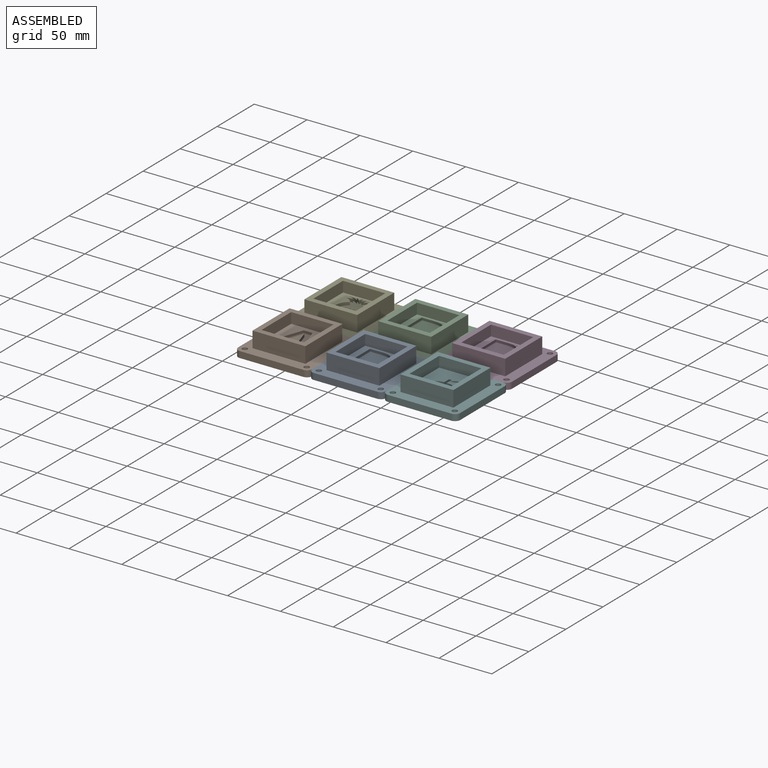
[diagram: assembled view]
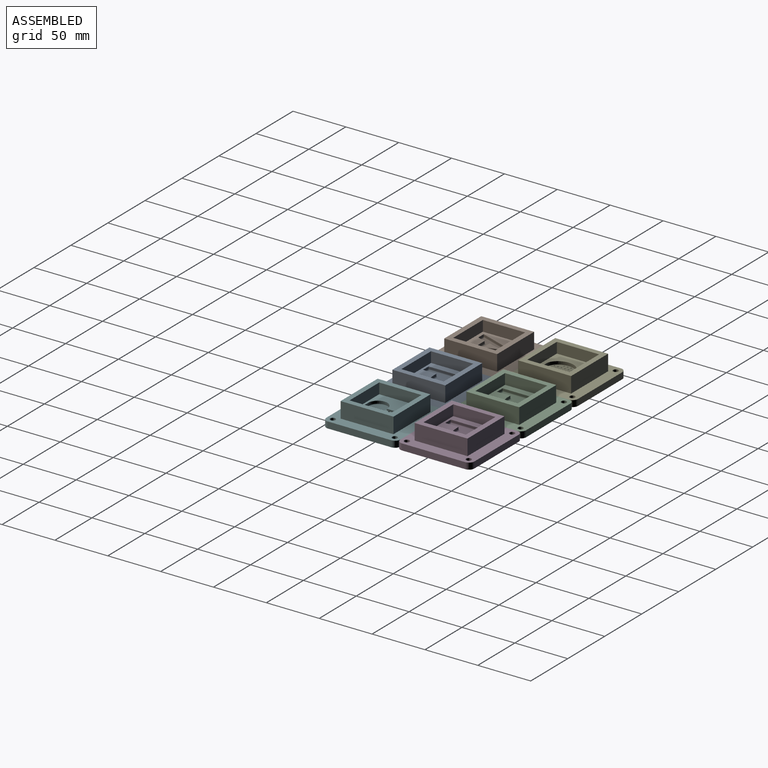
[diagram: assembled view, second angle]
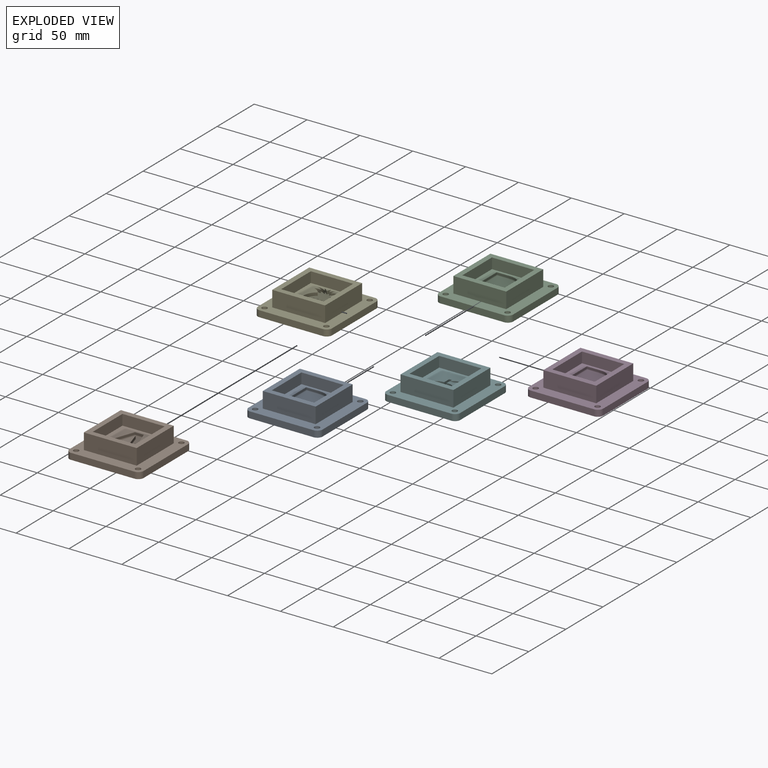
[diagram: exploded view]
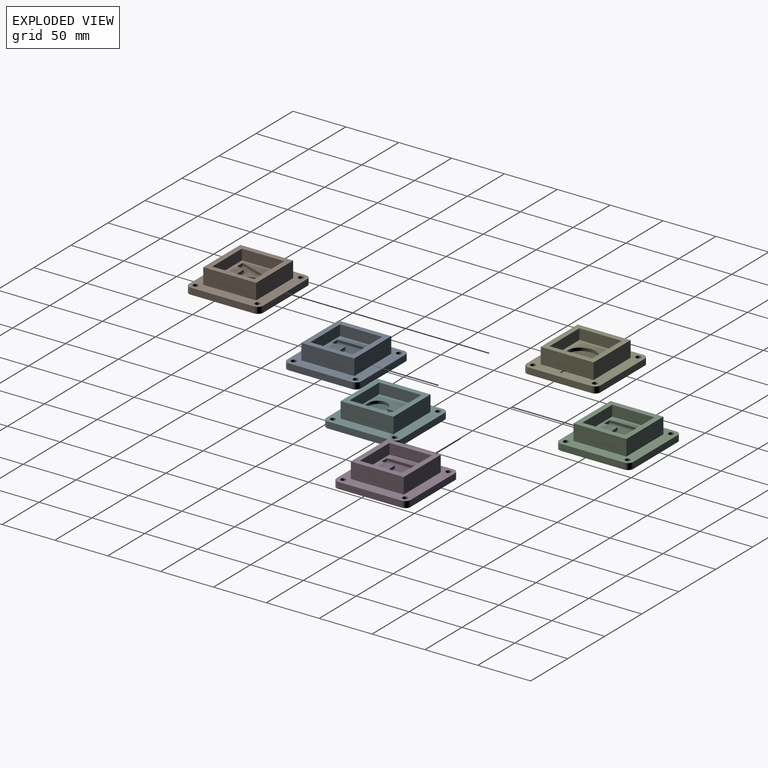
[diagram: exploded view, second angle]
ASSEMBLY  parts=6 mates=5
PART A: 43 faces, bbox 70x70x21 mm
  f0: plane 50x50mm, normal (0,0,1), area 900mm2, adj f7,f8,f9,f10,f19,f20,f21,f22
  f1: plane 60x6mm, normal (1,0,0), area 360mm2, adj f5,f6,f11,f14
  f2: plane 60x6mm, normal (0,1,0), area 360mm2, adj f5,f6,f11,f12
  f3: plane 60x6mm, normal (-1,0,0), area 360mm2, adj f5,f6,f12,f13
  f4: plane 60x6mm, normal (0,-1,0), area 360mm2, adj f5,f6,f13,f14
  f5: plane 70x70mm, normal (0,0,1), area 2300mm2, adj f1,f2,f3,f4,f7,f8,f9,f10
  f6: plane 70x70mm, normal (0,0,-1), area 4800mm2, adj f1,f2,f3,f4,f11,f12,f13,f14
  f7: plane 50x15mm, normal (1,0,0), area 750mm2, adj f0,f5,f8,f10
  f8: plane 50x15mm, normal (0,1,0), area 750mm2, adj f0,f5,f7,f9
  f9: plane 50x15mm, normal (-1,0,0), area 750mm2, adj f0,f5,f8,f10
  f10: plane 50x15mm, normal (0,-1,0), area 750mm2, adj f0,f5,f7,f9
  f11: cylinder r=5mm len=6mm, axis (0,0,-1), area 47.1mm2, adj f1,f2,f5,f6
  f12: cylinder r=5mm len=6mm, axis (0,0,1), area 47.1mm2, adj f2,f3,f5,f6
  f13: cylinder r=5mm len=6mm, axis (0,0,-1), area 47.1mm2, adj f3,f4,f5,f6
  f14: cylinder r=5mm len=6mm, axis (0,0,1), area 47.1mm2, adj f1,f4,f5,f6
  f15: cylinder r=2.5mm len=6mm, axis (0,0,1), area 94.2mm2, adj f5,f6
  f16: cylinder r=2.5mm len=6mm, axis (0,0,1), area 94.2mm2, adj f5,f6
  f17: cylinder r=2.5mm len=6mm, axis (0,0,1), area 94.2mm2, adj f5,f6
  f18: cylinder r=2.5mm len=6mm, axis (0,0,1), area 94.2mm2, adj f5,f6
  f19: plane 40x10mm, normal (-1,0,0), area 400mm2, adj f0,f20,f22,f23
  f20: plane 40x10mm, normal (0,-1,0), area 400mm2, adj f0,f19,f21,f23
  f21: plane 40x10mm, normal (1,0,0), area 400mm2, adj f0,f20,f22,f23
  f22: plane 40x10mm, normal (0,1,0), area 400mm2, adj f0,f19,f21,f23
  f23: plane 40x40mm, normal (0,0,1), area 999.4mm2, adj f19,f20,f21,f22,f24,f25,f26,f27
  f24: extruded ~8.28x3.35mm, area 18.5mm2, adj f23,f25,f32,f40
  f25: extruded ~9.81x2.78mm, area 20.8mm2, adj f23,f24,f26,f38
  f26: plane 11.32x2mm, normal (0,-1,0), area 22.6mm2, adj f23,f25,f27,f36
  f27: plane 35.44x2mm, normal (1,0,0), area 70.9mm2, adj f23,f26,f28,f34
  f28: plane 7.52x2mm, normal (0,1,0), area 15mm2, adj f23,f27,f29,f35
  f29: plane 12.6x2mm, normal (-1,0,0), area 25.2mm2, adj f23,f28,f30,f37
  f30: plane 3.22x2mm, normal (0,1,0), area 6.4mm2, adj f23,f29,f31,f39
  f31: extruded ~10.17x3.03mm, area 21.7mm2, adj f23,f30,f32,f41
  f32: extruded ~8.75x3.58mm, area 19.6mm2, adj f23,f24,f31,f42
  f33: plane 33.44x22.48mm, normal (0,0,1), area 493.8mm2, adj f34,f35,f36,f37,f38,f39,f40,f41
  f34: cylinder r=1mm len=35.44mm, axis (0,-1,0), area 54.1mm2, adj f27,f33,f35,f36
  f35: cylinder r=1mm len=7.52mm, axis (1,0,0), area 10.2mm2, adj f28,f33,f34,f37
  f36: cylinder r=1mm len=11.32mm, axis (-1,0,0), area 17mm2, adj f26,f33,f34,f38
  f37: cylinder r=1mm len=13.6mm, axis (0,1,0), area 19.8mm2, adj f29,f33,f35,f39
  f38: bspline ~13.87x5.01mm, area 15.9mm2, adj f25,f33,f36,f40
  f39: cylinder r=1mm len=4.22mm, axis (1,0,0), area 5.8mm2, adj f30,f33,f37,f41
  f40: bspline ~11.65x4.55mm, area 14mm2, adj f24,f33,f38,f42
  f41: bspline ~14.27x5.3mm, area 16.6mm2, adj f31,f33,f39,f42
  f42: bspline ~13.87x6.59mm, area 14.9mm2, adj f32,f33,f40,f41
PART B: 50 faces, bbox 70x70x21 mm
  f0: plane 40x40mm, normal (0,0,1), area 1062.2mm2, adj f20,f21,f22,f23,f24,f25,f26,f27
  f1: plane 60x6mm, normal (1,0,0), area 360mm2, adj f5,f6,f12,f15
  f2: plane 60x6mm, normal (0,1,0), area 360mm2, adj f5,f6,f12,f13
  f3: plane 60x6mm, normal (-1,0,0), area 360mm2, adj f5,f6,f13,f14
  f4: plane 60x6mm, normal (0,-1,0), area 360mm2, adj f5,f6,f14,f15
  f5: plane 70x70mm, normal (0,0,1), area 2300mm2, adj f1,f2,f3,f4,f7,f8,f9,f10
  f6: plane 70x70mm, normal (0,0,-1), area 4800mm2, adj f1,f2,f3,f4,f12,f13,f14,f15
  f7: plane 50x15mm, normal (1,0,0), area 750mm2, adj f5,f8,f10,f11
  f8: plane 50x15mm, normal (0,1,0), area 750mm2, adj f5,f7,f9,f11
  f9: plane 50x15mm, normal (-1,0,0), area 750mm2, adj f5,f8,f10,f11
  f10: plane 50x15mm, normal (0,-1,0), area 750mm2, adj f5,f7,f9,f11
  f11: plane 50x50mm, normal (0,0,1), area 900mm2, adj f7,f8,f9,f10,f20,f21,f22,f23
  f12: cylinder r=5mm len=6mm, axis (0,0,-1), area 47.1mm2, adj f1,f2,f5,f6
  f13: cylinder r=5mm len=6mm, axis (0,0,1), area 47.1mm2, adj f2,f3,f5,f6
  f14: cylinder r=5mm len=6mm, axis (0,0,-1), area 47.1mm2, adj f3,f4,f5,f6
  f15: cylinder r=5mm len=6mm, axis (0,0,1), area 47.1mm2, adj f1,f4,f5,f6
  f16: cylinder r=2.5mm len=6mm, axis (0,0,1), area 94.2mm2, adj f5,f6
  f17: cylinder r=2.5mm len=6mm, axis (0,0,1), area 94.2mm2, adj f5,f6
  f18: cylinder r=2.5mm len=6mm, axis (0,0,1), area 94.2mm2, adj f5,f6
  f19: cylinder r=2.5mm len=6mm, axis (0,0,1), area 94.2mm2, adj f5,f6
  f20: plane 40x10mm, normal (-1,0,0), area 400mm2, adj f0,f11,f21,f23
  f21: plane 40x10mm, normal (0,-1,0), area 400mm2, adj f0,f11,f20,f22
  f22: plane 40x10mm, normal (1,0,0), area 400mm2, adj f0,f11,f21,f23
  f23: plane 40x10mm, normal (0,1,0), area 400mm2, adj f0,f11,f20,f22
  f24: plane 7.41x2mm, normal (0,1,0), area 14.8mm2, adj f0,f25,f35,f41
  f25: plane 32.57x11.49mm, normal (-0.94,-0.33,0), area 69.1mm2, adj f0,f24,f26,f39
  f26: plane 8.4x2mm, normal (0,-1,0), area 16.8mm2, adj f0,f25,f27,f38
  f27: plane 32.57x11.45mm, normal (0.94,-0.33,0), area 69mm2, adj f0,f26,f28,f40
  f28: plane 7.41x2mm, normal (0,1,0), area 14.8mm2, adj f0,f27,f29,f42
  f29: plane 7.72x2.35mm, normal (-0.96,0.29,0), area 16.1mm2, adj f0,f28,f30,f44
  f30: plane 11.83x2mm, normal (0,1,0), area 23.7mm2, adj f0,f29,f35,f45
  f31: plane 8.45x2.5mm, normal (0,-1,0), area 21.1mm2, adj f32,f34,f37,f47
  f32: extruded ~14.04x4.19mm, area 36.6mm2, adj f31,f33,f37,f46
  f33: extruded ~2.5x2.17mm, area 5.6mm2, adj f32,f34,f37,f48
  f34: extruded ~11.87x3.67mm, area 31.1mm2, adj f31,f33,f37,f49
  f35: plane 7.72x2.35mm, normal (0.96,0.29,0), area 16.1mm2, adj f0,f24,f30,f43
  f36: plane 30.57x28.52mm, normal (0,0,1), area 343mm2, adj f38,f39,f40,f41,f42,f43,f44,f45
  f37: plane 14.04x8.45mm, normal (0,0,1), area 58.2mm2, adj f31,f32,f33,f34
  f38: cylinder r=1mm len=8.4mm, axis (-1,0,0), area 12.1mm2, adj f26,f36,f39,f40
  f39: cylinder r=1mm len=32.9mm, axis (-0.33,0.94,0), area 52.6mm2, adj f25,f36,f38,f41
  f40: cylinder r=1mm len=32.9mm, axis (-0.33,-0.94,0), area 52.6mm2, adj f27,f36,f38,f42
  f41: cylinder r=1mm len=7.41mm, axis (1,0,0), area 9.9mm2, adj f24,f36,f39,f43
  f42: cylinder r=1mm len=7.41mm, axis (1,0,0), area 9.9mm2, adj f28,f36,f40,f44
  f43: cylinder r=1mm len=8.72mm, axis (0.29,-0.96,0), area 12.7mm2, adj f35,f36,f41,f45
  f44: cylinder r=1mm len=8.72mm, axis (0.29,0.96,0), area 12.7mm2, adj f29,f36,f42,f45
  f45: cylinder r=1mm len=13.31mm, axis (1,0,0), area 19.7mm2, adj f30,f36,f43,f44
  f46: bspline ~27.39x8.32mm, area 12.6mm2, adj f32,f36,f47,f48
  f47: cylinder r=0.5mm len=9.8mm, axis (-1,0,0), area 7.2mm2, adj f31,f36,f46,f49
  f48: bspline ~5.44x1.82mm, area 2.6mm2, adj f33,f36,f46,f49
  f49: bspline ~17.31x5.79mm, area 10mm2, adj f34,f36,f47,f48
PART C: same geometry as A
PART D: same geometry as A
PART E: 163 faces, bbox 70x70x21 mm
  f0: plane 35.08x23.79mm, normal (0,0,1), area 533.7mm2, adj f25,f26,f27,f28,f29,f30,f31,f32
  f1: plane 50x50mm, normal (0,0,1), area 900mm2, adj f8,f9,f10,f11,f20,f21,f22,f23
  f2: plane 60x6mm, normal (1,0,0), area 360mm2, adj f6,f7,f12,f15
  f3: plane 60x6mm, normal (0,1,0), area 360mm2, adj f6,f7,f12,f13
  f4: plane 60x6mm, normal (-1,0,0), area 360mm2, adj f6,f7,f13,f14
  f5: plane 60x6mm, normal (0,-1,0), area 360mm2, adj f6,f7,f14,f15
  f6: plane 70x70mm, normal (0,0,1), area 2300mm2, adj f2,f3,f4,f5,f8,f9,f10,f11
  f7: plane 70x70mm, normal (0,0,-1), area 4800mm2, adj f2,f3,f4,f5,f12,f13,f14,f15
  f8: plane 50x15mm, normal (1,0,0), area 750mm2, adj f1,f6,f9,f11
  f9: plane 50x15mm, normal (0,1,0), area 750mm2, adj f1,f6,f8,f10
  f10: plane 50x15mm, normal (-1,0,0), area 750mm2, adj f1,f6,f9,f11
  f11: plane 50x15mm, normal (0,-1,0), area 750mm2, adj f1,f6,f8,f10
  f12: cylinder r=5mm len=6mm, axis (0,0,-1), area 47.1mm2, adj f2,f3,f6,f7
  f13: cylinder r=5mm len=6mm, axis (0,0,1), area 47.1mm2, adj f3,f4,f6,f7
  f14: cylinder r=5mm len=6mm, axis (0,0,-1), area 47.1mm2, adj f4,f5,f6,f7
  f15: cylinder r=5mm len=6mm, axis (0,0,1), area 47.1mm2, adj f2,f5,f6,f7
  f16: cylinder r=2.5mm len=6mm, axis (0,0,1), area 94.2mm2, adj f6,f7
  f17: cylinder r=2.5mm len=6mm, axis (0,0,1), area 94.2mm2, adj f6,f7
  f18: cylinder r=2.5mm len=6mm, axis (0,0,1), area 94.2mm2, adj f6,f7
  f19: cylinder r=2.5mm len=6mm, axis (0,0,1), area 94.2mm2, adj f6,f7
  f20: plane 40x10mm, normal (-1,0,0), area 400mm2, adj f1,f21,f23,f24
  f21: plane 40x10mm, normal (0,-1,0), area 400mm2, adj f1,f20,f22,f24
  f22: plane 40x10mm, normal (1,0,0), area 400mm2, adj f1,f21,f23,f24
  f23: plane 40x10mm, normal (0,1,0), area 400mm2, adj f1,f20,f22,f24
  f24: plane 40x40mm, normal (0,0,1), area 1001.1mm2, adj f20,f21,f22,f23,f25,f26,f27,f28
  f25: cylinder r=6.42mm len=5.6mm, axis (0,0,1), area 17.6mm2, adj f0,f24,f26,f37
  f26: cylinder r=6.17mm len=5.75mm, axis (0,0,1), area 19.7mm2, adj f0,f24,f25,f27
  f27: cylinder r=8.91mm len=9.1mm, axis (0,0,1), area 29.7mm2, adj f0,f24,f26,f28
  f28: cylinder r=10.1mm len=3.49mm, axis (0,0,1), area 12.6mm2, adj f0,f24,f27,f29
  f29: cylinder r=8.81mm len=3.78mm, axis (0,0,1), area 14.4mm2, adj f0,f24,f28,f30
  f30: plane 3.76x3mm, normal (0.91,-0.42,0), area 12.4mm2, adj f0,f24,f29,f31
  f31: plane 4.39x3mm, normal (-0.96,-0.28,0), area 13.7mm2, adj f0,f24,f30,f32
  f32: cylinder r=5.71mm len=3.28mm, axis (0,0,1), area 13.1mm2, adj f0,f24,f31,f33
  f33: cylinder r=21.12mm len=3.94mm, axis (0,0,1), area 11.9mm2, adj f0,f24,f32,f34
  f34: cylinder r=7.13mm len=7.31mm, axis (0,0,1), area 23mm2, adj f0,f24,f33,f35
  f35: cylinder r=5.19mm len=5.57mm, axis (0,0,1), area 23.2mm2, adj f0,f24,f34,f36,f162
  f36: extruded ~25.37x23.23mm, area 185.9mm2, adj f24,f35,f37,f162
  f37: cylinder r=10.08mm len=6.61mm, axis (0,0,1), area 24.6mm2, adj f0,f24,f25,f36,f162
  f38: plane 0.26x0.26mm, normal (0,0,1), area 0.1mm2, adj f39,f40,f41
  f39: bspline ~1.77x1mm, area 1.2mm2, adj f0,f38,f40,f41
  f40: bspline ~1.9x1mm, area 1.2mm2, adj f0,f38,f39,f41
  f41: bspline ~1.77x1mm, area 1.2mm2, adj f0,f38,f39,f40
  f42: plane 0.27x0.27mm, normal (0,0,1), area 0.1mm2, adj f43,f44,f45
  f43: bspline ~1.77x1mm, area 1.2mm2, adj f0,f42,f44,f45
  f44: bspline ~1.77x1mm, area 1.2mm2, adj f0,f42,f43,f45
  f45: bspline ~1.9x1mm, area 1.2mm2, adj f0,f42,f43,f44
  f46: plane 0.27x0.27mm, normal (0,0,1), area 0.1mm2, adj f47,f48,f49
  f47: bspline ~1.77x1mm, area 1.2mm2, adj f0,f46,f48,f49
  f48: bspline ~1.77x1mm, area 1.2mm2, adj f0,f46,f47,f49
  f49: bspline ~1.9x1mm, area 1.2mm2, adj f0,f46,f47,f48
  f50: plane 0.27x0.27mm, normal (0,0,1), area 0.1mm2, adj f51,f52,f53
  f51: bspline ~1.77x1mm, area 1.2mm2, adj f0,f50,f52,f53
  f52: bspline ~1.77x1mm, area 1.2mm2, adj f0,f50,f51,f53
  f53: bspline ~1.9x1mm, area 1.2mm2, adj f0,f50,f51,f52
  f54: plane 0.3x0.3mm, normal (0,0,1), area 0.1mm2, adj f55,f56,f57
  f55: bspline ~1.77x1mm, area 1.2mm2, adj f0,f54,f56,f57
  f56: bspline ~1.9x1mm, area 1.2mm2, adj f0,f54,f55,f57
  f57: bspline ~1.77x1mm, area 1.3mm2, adj f0,f54,f55,f56
  f58: plane 0.27x0.27mm, normal (0,0,1), area 0.1mm2, adj f59,f60,f61
  f59: bspline ~1.77x1mm, area 1.2mm2, adj f0,f58,f60,f61
  f60: bspline ~1.77x1mm, area 1.2mm2, adj f0,f58,f59,f61
  f61: bspline ~1.9x1mm, area 1.2mm2, adj f0,f58,f59,f60
  f62: plane 0.27x0.27mm, normal (0,0,1), area 0.1mm2, adj f63,f64,f65
  f63: bspline ~1.77x1mm, area 1.2mm2, adj f0,f62,f64,f65
  f64: bspline ~1.77x1mm, area 1.2mm2, adj f0,f62,f63,f65
  f65: bspline ~1.9x1mm, area 1.2mm2, adj f0,f62,f63,f64
  f66: plane 0.27x0.27mm, normal (0,0,1), area 0.1mm2, adj f67,f68,f69
  f67: bspline ~1.77x1mm, area 1.2mm2, adj f0,f66,f68,f69
  f68: bspline ~1.77x1mm, area 1.2mm2, adj f0,f66,f67,f69
  f69: bspline ~1.9x1mm, area 1.2mm2, adj f0,f66,f67,f68
  f70: plane 0.27x0.27mm, normal (0,0,1), area 0.1mm2, adj f71,f72,f73
  f71: bspline ~1.77x1mm, area 1.2mm2, adj f0,f70,f72,f73
  f72: bspline ~1.77x1mm, area 1.2mm2, adj f0,f70,f71,f73
  f73: bspline ~1.9x1mm, area 1.2mm2, adj f0,f70,f71,f72
  f74: plane 0.3x0.3mm, normal (0,0,1), area 0.1mm2, adj f75,f76,f77
  f75: bspline ~1.77x1mm, area 1.2mm2, adj f0,f74,f76,f77
  f76: bspline ~1.9x1mm, area 1.2mm2, adj f0,f74,f75,f77
  f77: bspline ~1.77x1mm, area 1.3mm2, adj f0,f74,f75,f76
  f78: plane 0.27x0.27mm, normal (0,0,1), area 0.1mm2, adj f79,f80,f81
  f79: bspline ~1.77x1mm, area 1.2mm2, adj f0,f78,f80,f81
  f80: bspline ~1.77x1mm, area 1.2mm2, adj f0,f78,f79,f81
  f81: bspline ~1.9x1mm, area 1.2mm2, adj f0,f78,f79,f80
  f82: plane 0.27x0.27mm, normal (0,0,1), area 0.1mm2, adj f83,f84,f85
  f83: bspline ~1.77x1mm, area 1.2mm2, adj f0,f82,f84,f85
  f84: bspline ~1.77x1mm, area 1.2mm2, adj f0,f82,f83,f85
  f85: bspline ~1.9x1mm, area 1.2mm2, adj f0,f82,f83,f84
  f86: plane 0.27x0.27mm, normal (0,0,1), area 0.1mm2, adj f87,f88,f89
  f87: bspline ~1.77x1mm, area 1.2mm2, adj f0,f86,f88,f89
  f88: bspline ~1.77x1mm, area 1.2mm2, adj f0,f86,f87,f89
  f89: bspline ~1.9x1mm, area 1.2mm2, adj f0,f86,f87,f88
  f90: plane 0.27x0.27mm, normal (0,0,1), area 0.1mm2, adj f91,f92,f93
  f91: bspline ~1.77x1mm, area 1.2mm2, adj f0,f90,f92,f93
  f92: bspline ~1.77x1mm, area 1.2mm2, adj f0,f90,f91,f93
  f93: bspline ~1.9x1mm, area 1.2mm2, adj f0,f90,f91,f92
  f94: plane 0.31x0.31mm, normal (0,0,1), area 0.1mm2, adj f95,f96,f97
  f95: bspline ~1.77x1mm, area 1.2mm2, adj f0,f94,f96,f97
  f96: bspline ~1.9x1mm, area 1.2mm2, adj f0,f94,f95,f97
  f97: bspline ~1.77x1mm, area 1.3mm2, adj f0,f94,f95,f96
  f98: plane 0.26x0.26mm, normal (0,0,1), area 0.1mm2, adj f99,f100,f101
  f99: bspline ~1.77x1mm, area 1.2mm2, adj f0,f98,f100,f101
  f100: bspline ~1.77x1mm, area 1.2mm2, adj f0,f98,f99,f101
  f101: bspline ~1.9x1mm, area 1.2mm2, adj f0,f98,f99,f100
  f102: plane 0.26x0.26mm, normal (0,0,1), area 0.1mm2, adj f103,f104,f105
  f103: bspline ~1.77x1mm, area 1.2mm2, adj f0,f102,f104,f105
  f104: bspline ~1.77x1mm, area 1.2mm2, adj f0,f102,f103,f105
  f105: bspline ~1.9x1mm, area 1.2mm2, adj f0,f102,f103,f104
  f106: plane 0.26x0.26mm, normal (0,0,1), area 0.1mm2, adj f107,f108,f109
  f107: bspline ~1.77x1mm, area 1.2mm2, adj f0,f106,f108,f109
  f108: bspline ~1.77x1mm, area 1.2mm2, adj f0,f106,f107,f109
  f109: bspline ~1.9x1mm, area 1.2mm2, adj f0,f106,f107,f108
  f110: plane 0.26x0.26mm, normal (0,0,1), area 0.1mm2, adj f111,f112,f113
  f111: bspline ~1.77x1mm, area 1.2mm2, adj f0,f110,f112,f113
  f112: bspline ~1.77x1mm, area 1.2mm2, adj f0,f110,f111,f113
  f113: bspline ~1.9x1mm, area 1.2mm2, adj f0,f110,f111,f112
  f114: plane 0.26x0.26mm, normal (0,0,1), area 0.1mm2, adj f115,f116,f117
  f115: bspline ~1.77x1mm, area 1.2mm2, adj f0,f114,f116,f117
  f116: bspline ~1.9x1mm, area 1.2mm2, adj f0,f114,f115,f117
  f117: bspline ~1.77x1mm, area 1.3mm2, adj f0,f114,f115,f116
  f118: plane 0.26x0.26mm, normal (0,0,1), area 0.1mm2, adj f119,f120,f121
  f119: bspline ~1.9x1mm, area 1.2mm2, adj f0,f118,f120,f121
  f120: bspline ~1.77x1mm, area 1.3mm2, adj f0,f118,f119,f121
  f121: bspline ~1.77x1mm, area 1.2mm2, adj f0,f118,f119,f120
  f122: plane 0.27x0.27mm, normal (0,0,1), area 0.1mm2, adj f123,f124,f125
  f123: bspline ~1.9x1mm, area 1.2mm2, adj f0,f122,f124,f125
  f124: bspline ~1.77x1mm, area 1.3mm2, adj f0,f122,f123,f125
  f125: bspline ~1.77x1mm, area 1.2mm2, adj f0,f122,f123,f124
  f126: plane 0.26x0.26mm, normal (0,0,1), area 0.1mm2, adj f127,f128,f129
  f127: bspline ~1.77x1mm, area 1.3mm2, adj f0,f126,f128,f129
  f128: bspline ~1.77x1mm, area 1.2mm2, adj f0,f126,f127,f129
  f129: bspline ~1.9x1mm, area 1.2mm2, adj f0,f126,f127,f128
  f130: plane 0.26x0.26mm, normal (0,0,1), area 0.1mm2, adj f131,f132,f133
  f131: bspline ~1.77x1mm, area 1.3mm2, adj f0,f130,f132,f133
  f132: bspline ~1.77x1mm, area 1.2mm2, adj f0,f130,f131,f133
  f133: bspline ~1.9x1mm, area 1.2mm2, adj f0,f130,f131,f132
  f134: plane 0.26x0.26mm, normal (0,0,1), area 0.1mm2, adj f135,f136,f137
  f135: bspline ~1.77x1mm, area 1.3mm2, adj f0,f134,f136,f137
  f136: bspline ~1.84x1.04mm, area 1.2mm2, adj f0,f134,f135,f137,f162
  f137: bspline ~1.97x1.04mm, area 1.2mm2, adj f0,f134,f135,f136,f162
  f138: plane 0.26x0.26mm, normal (0,0,1), area 0.1mm2, adj f139,f140,f141
  f139: bspline ~1.77x1mm, area 1.3mm2, adj f0,f138,f140,f141
  f140: bspline ~1.77x1mm, area 1.2mm2, adj f0,f138,f139,f141
  f141: bspline ~1.9x1mm, area 1.2mm2, adj f0,f138,f139,f140
  f142: plane 0.26x0.26mm, normal (0,0,1), area 0.1mm2, adj f143,f144,f145
  f143: bspline ~1.77x1mm, area 1.3mm2, adj f0,f142,f144,f145
  f144: bspline ~1.77x1mm, area 1.2mm2, adj f0,f142,f143,f145
  f145: bspline ~1.9x1mm, area 1.2mm2, adj f0,f142,f143,f144
  f146: plane 0.26x0.26mm, normal (0,0,1), area 0.1mm2, adj f147,f148,f149
  f147: bspline ~1.77x1mm, area 1.3mm2, adj f0,f146,f148,f149
  f148: bspline ~1.77x1mm, area 1.2mm2, adj f0,f146,f147,f149
  f149: bspline ~1.9x1mm, area 1.2mm2, adj f0,f146,f147,f148
  f150: plane 0.26x0.26mm, normal (0,0,1), area 0.1mm2, adj f151,f152,f153
  f151: bspline ~1.9x1mm, area 1.2mm2, adj f0,f150,f152,f153
  f152: bspline ~1.77x1mm, area 1.2mm2, adj f0,f150,f151,f153
  f153: bspline ~1.77x1.17mm, area 1.4mm2, adj f0,f150,f151,f152
  f154: plane 0.27x0.26mm, normal (0,0,1), area 0.1mm2, adj f155,f156,f157
  f155: bspline ~1.9x1mm, area 1.2mm2, adj f0,f154,f156,f157
  f156: bspline ~1.77x1mm, area 1.2mm2, adj f0,f154,f155,f157
  f157: bspline ~1.77x1.16mm, area 1.4mm2, adj f0,f154,f155,f156
  f158: plane 0.27x0.26mm, normal (0,0,1), area 0.1mm2, adj f159,f160,f161
  f159: bspline ~1.9x1mm, area 1.2mm2, adj f0,f158,f160,f161
  f160: bspline ~1.77x1mm, area 1.2mm2, adj f0,f158,f159,f161
  f161: bspline ~1.77x1.15mm, area 1.3mm2, adj f0,f158,f159,f160
  f162: bspline ~26.21x23.28mm, area 20.7mm2, adj f0,f35,f36,f37,f136,f137
PART F: 40 faces, bbox 70x70x21 mm
  f0: plane 60x6mm, normal (1,0,0), area 360mm2, adj f4,f5,f11,f14
  f1: plane 60x6mm, normal (0,1,0), area 360mm2, adj f4,f5,f11,f12
  f2: plane 60x6mm, normal (-1,0,0), area 360mm2, adj f4,f5,f12,f13
  f3: plane 60x6mm, normal (0,-1,0), area 360mm2, adj f4,f5,f13,f14
  f4: plane 70x70mm, normal (0,0,1), area 2300mm2, adj f0,f1,f2,f3,f6,f7,f8,f9
  f5: plane 70x70mm, normal (0,0,-1), area 4800mm2, adj f0,f1,f2,f3,f11,f12,f13,f14
  f6: plane 50x15mm, normal (1,0,0), area 750mm2, adj f4,f7,f9,f10
  f7: plane 50x15mm, normal (0,1,0), area 750mm2, adj f4,f6,f8,f10
  f8: plane 50x15mm, normal (-1,0,0), area 750mm2, adj f4,f7,f9,f10
  f9: plane 50x15mm, normal (0,-1,0), area 750mm2, adj f4,f6,f8,f10
  f10: plane 50x50mm, normal (0,0,1), area 900mm2, adj f6,f7,f8,f9,f19,f20,f21,f22
  f11: cylinder r=5mm len=6mm, axis (0,0,-1), area 47.1mm2, adj f0,f1,f4,f5
  f12: cylinder r=5mm len=6mm, axis (0,0,1), area 47.1mm2, adj f1,f2,f4,f5
  f13: cylinder r=5mm len=6mm, axis (0,0,-1), area 47.1mm2, adj f2,f3,f4,f5
  f14: cylinder r=5mm len=6mm, axis (0,0,1), area 47.1mm2, adj f0,f3,f4,f5
  f15: cylinder r=2.5mm len=6mm, axis (0,0,1), area 94.2mm2, adj f4,f5
  f16: cylinder r=2.5mm len=6mm, axis (0,0,1), area 94.2mm2, adj f4,f5
  f17: cylinder r=2.5mm len=6mm, axis (0,0,1), area 94.2mm2, adj f4,f5
  f18: cylinder r=2.5mm len=6mm, axis (0,0,1), area 94.2mm2, adj f4,f5
  f19: plane 40x10mm, normal (-1,0,0), area 400mm2, adj f10,f20,f22,f23
  f20: plane 40x10mm, normal (0,-1,0), area 400mm2, adj f10,f19,f21,f23
  f21: plane 40x10mm, normal (1,0,0), area 400mm2, adj f10,f20,f22,f23
  f22: plane 40x10mm, normal (0,1,0), area 400mm2, adj f10,f19,f21,f23
  f23: plane 40x40mm, normal (0,0,1), area 1217.4mm2, adj f19,f20,f21,f22,f24,f25,f27,f28
  f24: plane 3.96x2.5mm, normal (-1,0.06,0), area 9.9mm2, adj f23,f25,f31,f36
  f25: cylinder r=6.96mm len=8.04mm, axis (0,0,1), area 22.5mm2, adj f23,f24,f26,f33,f34
  f26: cylinder r=5.52mm len=7.76mm, axis (0,0,1), area 22.9mm2, adj f25,f27,f32,f33,f34
  f27: plane 3.01x2.33mm, normal (-1,0.06,0), area 6.8mm2, adj f23,f26,f28,f32,f33,f35
  f28: plane 2.71x2.5mm, normal (0,-1,0), area 6.8mm2, adj f23,f27,f29,f35
  f29: plane 6.76x2.5mm, normal (1,0,0), area 16.9mm2, adj f23,f28,f30,f37
  f30: cylinder r=9.12mm len=18.25mm, axis (0,0,1), area 79.1mm2, adj f23,f29,f31,f39
  f31: cylinder r=9.12mm len=18.25mm, axis (0,0,1), area 80.4mm2, adj f23,f24,f30,f38
  f32: plane 25.37x21.63mm, normal (0,0,1), area 335.3mm2, adj f26,f27,f34,f35,f36,f37,f38,f39
  f33: torus R=6.02mm, axis (0,0,1), area 7.1mm2, adj f23,f25,f26,f27
  f34: torus R=6.46mm, axis (0,0,1), area 7mm2, adj f25,f26,f32,f36
  f35: cylinder r=0.5mm len=2.71mm, axis (-1,0,0), area 2mm2, adj f27,f28,f32,f37
  f36: cylinder r=0.5mm len=5.27mm, axis (0.06,1,0), area 3.5mm2, adj f24,f32,f34,f38
  f37: cylinder r=0.5mm len=7.32mm, axis (0,-1,0), area 5.3mm2, adj f29,f32,f35,f39
  f38: torus R=8.62mm, axis (0,0,1), area 25mm2, adj f31,f32,f36,f39
  f39: torus R=8.62mm, axis (0,0,1), area 24.6mm2, adj f30,f32,f37,f38
PLACE A t=(-187.3,-9.43,-47.27)mm
PLACE B t=(-257.3,-9.43,-47.27)mm
PLACE C t=(-187.3,60.57,-47.27)mm
PLACE D t=(-117.3,60.57,-47.27)mm
PLACE E t=(-257.3,60.57,-47.27)mm
PLACE F t=(-117.3,-9.43,-47.27)mm
MATE fastened A.f2 <-> C.f4  axis (0,1,0) through (-187.3,25.57,-44.27)mm
MATE fastened E.f2 <-> C.f3  axis (1,0,0) through (-222.3,60.57,-44.27)mm
MATE fastened F.f2 <-> A.f1  axis (-1,0,0) through (-152.3,-9.43,-44.27)mm
MATE fastened B.f2 <-> E.f5  axis (0,1,0) through (-257.3,25.57,-44.27)mm
MATE fastened C.f1 <-> D.f3  axis (1,0,0) through (-152.3,60.57,-44.27)mm
